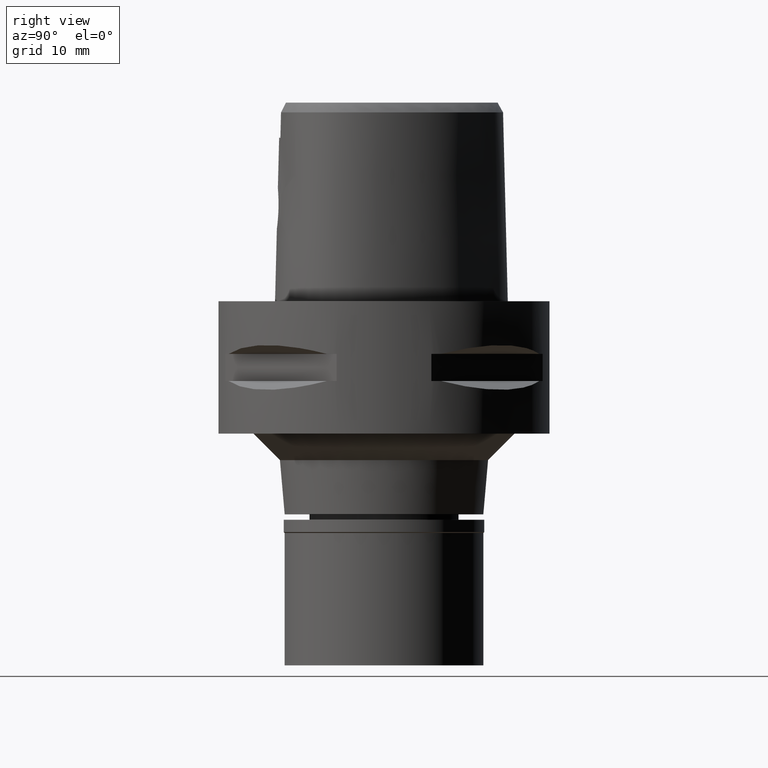
[diagram: clean part render]
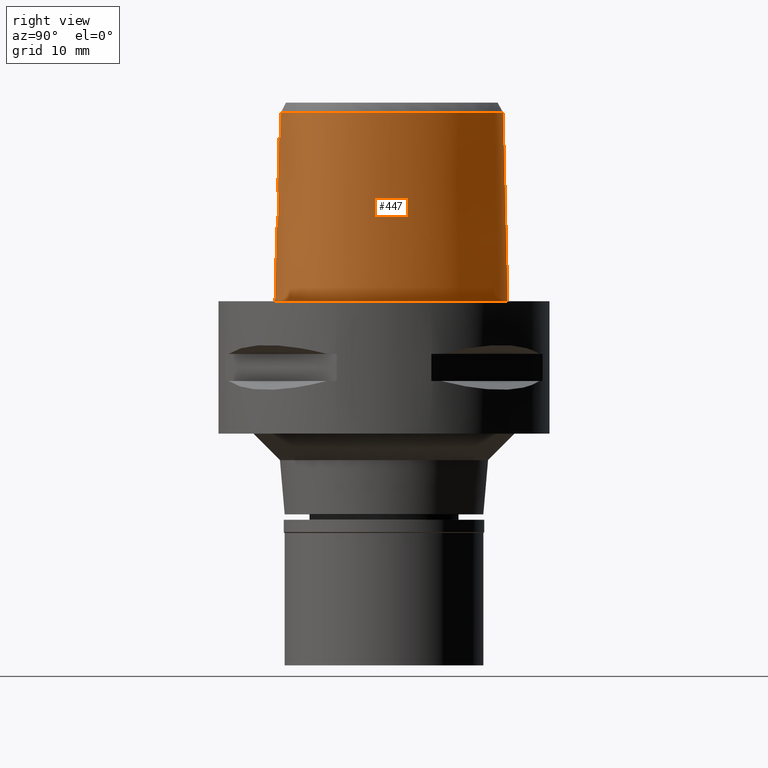
[diagram: same view with one face highlighted and labeled with its STEP entity id]
A machine part, right view. The second image highlights one B-rep face of the part: STEP entity #447.
In plain terms, the highlighted face is a freeform B-spline surface patch.
Its self-contained STEP definition (entity closure, byte-faithful):
#16 = CARTESIAN_POINT ( 'NONE',  ( -1.554703153563999914E-14, -16.18126839358999902, 10.94999999999999929 ) ) ;
#33 = CARTESIAN_POINT ( 'NONE',  ( 5.902447799194773026, -15.16907841529369705, 28.52071728562183139 ) ) ;
#83 = CARTESIAN_POINT ( 'NONE',  ( -1.089046663011000060, -16.44835922793999927, -0.5704150494051000164 ) ) ;
#84 = CARTESIAN_POINT ( 'NONE',  ( 5.051093168877305750, -16.15562500728407969, -2.943032363493004733E-07 ) ) ;
#134 = CARTESIAN_POINT ( 'NONE',  ( 13.06460231238362901, -11.91950040983171100, 28.52071728562183139 ) ) ;
#153 = CARTESIAN_POINT ( 'NONE',  ( 17.49754713036019638, -0.2285937487081985131, -2.943032363493004733E-07 ) ) ;
#165 = CARTESIAN_POINT ( 'NONE',  ( 2.672766172605274271, -16.01457911768984488, 12.52734710901161463 ) ) ;
#172 = CARTESIAN_POINT ( 'NONE',  ( 13.96223197684000183, 8.061115244770999055, 19.20397332997000106 ) ) ;
#186 = CARTESIAN_POINT ( 'NONE',  ( 0.9920215580105590236, -16.15968472523665511, 11.11503786710188635 ) ) ;
#194 = CARTESIAN_POINT ( 'NONE',  ( 15.05961587482999775, -9.784613871188000189, 29.09116751966000081 ) ) ;
#211 = CARTESIAN_POINT ( 'NONE',  ( 2.141242244413262164, -16.07748610924550547, 11.82798736334458312 ) ) ;
#216 = CARTESIAN_POINT ( 'NONE',  ( 17.33218214503999732, -5.422849661406000443, 9.316779140282999805 ) ) ;
#229 = CARTESIAN_POINT ( 'NONE',  ( 2.758793934018819005, -16.00144076156268014, 12.69891623355969479 ) ) ;
#237 = CARTESIAN_POINT ( 'NONE',  ( 11.32630872582000237, -13.06981777885999918, 29.09116751966000081 ) ) ;
#251 = CARTESIAN_POINT ( 'NONE',  ( 3.043879628103287160, -15.94365656354157856, 13.80124267186449494 ) ) ;
#257 = CARTESIAN_POINT ( 'NONE',  ( 17.17866843774999808, -7.169980047119000055, -0.5704150494051000164 ) ) ;
#258 = CARTESIAN_POINT ( 'NONE',  ( 16.47905536661268044, -6.962316254603254428, 28.52071728562183139 ) ) ;
#274 = CARTESIAN_POINT ( 'NONE',  ( 1.173041759185075916, -16.01002306781569118, 16.81539954715181651 ) ) ;
#281 = CARTESIAN_POINT ( 'NONE',  ( 7.668807520599000505, 15.44980289954999897, 19.20397332997000106 ) ) ;
#293 = CARTESIAN_POINT ( 'NONE',  ( 1.941192312555369170, -15.97911427269533746, 16.37496134276572946 ) ) ;
#301 = CARTESIAN_POINT ( 'NONE',  ( 2.043508294870999720, 18.56419797854000109, -0.5704150494051000164 ) ) ;
#318 = CARTESIAN_POINT ( 'NONE',  ( 7.514850377345999810, 15.25369585278999907, 29.09116751966000081 ) ) ;
#333 = CARTESIAN_POINT ( 'NONE',  ( 0.3727032668284881445, -16.02877864023999166, 17.04999999999999716 ) ) ;
#370 = CARTESIAN_POINT ( 'NONE',  ( -0.3531410331723000007, 17.96248689553000233, 29.09116751966000081 ) ) ;
#407 = CARTESIAN_POINT ( 'NONE',  ( -1.554703153563999914E-14, -16.18126839358999902, 10.94999999999999929 ) ) ;
#447 = ADVANCED_FACE ( 'NONE', ( #1876 ), #1582, .T. ) ;
#459 = CARTESIAN_POINT ( 'NONE',  ( 17.71143736299550397, -3.269218749952272685, -2.943032363493004733E-07 ) ) ;
#470 = CARTESIAN_POINT ( 'NONE',  ( 3.168920890822999770, -15.55911073834000113, 28.52071374672999582 ) ) ;
#480 = CARTESIAN_POINT ( 'NONE',  ( 17.56373943664532078, -5.455996094796278229, -2.943032363493004733E-07 ) ) ;
#520 = CARTESIAN_POINT ( 'NONE',  ( 0.7733500841030209738, -16.16827177608691457, 11.04792855518422989 ) ) ;
#526 = CARTESIAN_POINT ( 'NONE',  ( 5.053620745421999239, -16.16974069354000321, -0.5704150494051000164 ) ) ;
#543 = CARTESIAN_POINT ( 'NONE',  ( 2.955369103698598732, -15.96798146753206105, 13.22021584599074018 ) ) ;
#550 = CARTESIAN_POINT ( 'NONE',  ( 13.05575578338000042, -11.90823677972000105, 29.09116751966000081 ) ) ;
#575 = CARTESIAN_POINT ( 'NONE',  ( -0.7138086133277998790, -15.96808600019000046, 19.20397332997000106 ) ) ;
#592 = CARTESIAN_POINT ( 'NONE',  ( 2.043687128913164841, -16.08707877730888214, 11.73578097365642847 ) ) ;
#600 = CARTESIAN_POINT ( 'NONE',  ( 17.02224546358000268, -0.3128849387037999641, 19.20397332997000106 ) ) ;
#612 = ORIENTED_EDGE ( 'NONE', *, *, #3185, .T. ) ;
#614 = CARTESIAN_POINT ( 'NONE',  ( 1.260513252572480036, -16.00704836985821800, 16.77747266943881499 ) ) ;
#622 = CARTESIAN_POINT ( 'NONE',  ( 11.57144722099999967, -13.50085871676000160, 9.316779140282999805 ) ) ;
#623 = CARTESIAN_POINT ( 'NONE',  ( 15.84228676733572350, 3.460033425849364797, 28.52071728562183139 ) ) ;
#633 = CARTESIAN_POINT ( 'NONE',  ( 2.206788957358269521, -15.96511284288821741, 16.10546270898255727 ) ) ;
#639 = CARTESIAN_POINT ( 'NONE',  ( 10.90668468972000227, 11.98047043581000004, 29.09116751966000081 ) ) ;
#647 = EDGE_CURVE ( 'NONE', #3557, #3514, #1342, .T. ) ;
#654 = CARTESIAN_POINT ( 'NONE',  ( 2.271855808346507466, -15.96166101136509852, 16.03519156571071136 ) ) ;
#663 = CARTESIAN_POINT ( 'NONE',  ( 0.4640360852541999814, 18.23425851805000164, 19.20397332997000106 ) ) ;
#673 = VERTEX_POINT ( 'NONE', #3860 ) ;
#675 = CARTESIAN_POINT ( 'NONE',  ( 1.223003262555899306, -16.00836285064811193, 16.79409198884454213 ) ) ;
#684 = CARTESIAN_POINT ( 'NONE',  ( 4.628819200648000454, 17.52182782295999885, 9.316779140282999805 ) ) ;
#695 = CARTESIAN_POINT ( 'NONE',  ( 2.954106347308662173, -15.92920635269666896, 14.76550125215740294 ) ) ;
#703 = EDGE_CURVE ( 'NONE', #3557, #3096, #2173, .T. ) ;
#709 = ORIENTED_EDGE ( 'NONE', *, *, #4207, .T. ) ;
#735 = CARTESIAN_POINT ( 'NONE',  ( -0.3630720960266999864, 18.20950109746000223, 19.20397332997000106 ) ) ;
#742 = CARTESIAN_POINT ( 'NONE',  ( 6.782942639621067406E-08, -15.90128720080247859, 22.15000025259059768 ) ) ;
#761 = VERTEX_POINT ( 'NONE', #2474 ) ;
#815 = CARTESIAN_POINT ( 'NONE',  ( 11.68694516949283546, -13.70394531891655099, -2.943032363493004733E-07 ) ) ;
#822 = B_SPLINE_CURVE_WITH_KNOTS ( 'NONE', 3,
 ( #2868, #742, #3224, #3953 ),
 .UNSPECIFIED., .F., .F.,
 ( 4, 4 ),
 ( 0.0000000000000000000, 1.000000000000000000 ),
 .UNSPECIFIED. ) ;
#863 = CARTESIAN_POINT ( 'NONE',  ( 16.20602472602197253, -9.356552738060711860, -2.943032363493004733E-07 ) ) ;
#872 = CARTESIAN_POINT ( 'NONE',  ( 2.520387428565687316, -16.03552194241015272, 12.27092816431299838 ) ) ;
#876 = CARTESIAN_POINT ( 'NONE',  ( 3.168920890822999770, -15.55911073834000113, 28.52071374672999582 ) ) ;
#905 = CARTESIAN_POINT ( 'NONE',  ( 1.286803340676999863, -15.75925537066999738, 29.09116751966000081 ) ) ;
#927 = CARTESIAN_POINT ( 'NONE',  ( -0.7201291671830999386, -16.21519133446999916, 9.316779140282999805 ) ) ;
#941 = CARTESIAN_POINT ( 'NONE',  ( 2.076300978831038258, -16.08395488413348318, 11.76549149551803275 ) ) ;
#952 = CARTESIAN_POINT ( 'NONE',  ( 17.51166499414999933, -0.2260900513256000055, -0.5704150494051000164 ) ) ;
#977 = CARTESIAN_POINT ( 'NONE',  ( 15.82879708905999827, 3.455165038085000084, 29.09116751966000081 ) ) ;
#990 = CARTESIAN_POINT ( 'NONE',  ( 1.288909036631833205, -16.00601915956529098, 16.76449709074255168 ) ) ;
#998 = CARTESIAN_POINT ( 'NONE',  ( 14.39249255986999998, 8.309508953125000374, -0.5704150494051000164 ) ) ;
#999 = CARTESIAN_POINT ( 'NONE',  ( 13.75951381385633887, 7.944084035686378442, 28.52071728562183139 ) ) ;
#1010 = CARTESIAN_POINT ( 'NONE',  ( 2.887823412380889021, -15.93067557483755792, 14.98363575551913129 ) ) ;
#1040 = CARTESIAN_POINT ( 'NONE',  ( 4.416345065107999623, 17.06979529415999863, 29.09116751966000081 ) ) ;
#1053 = CARTESIAN_POINT ( 'NONE',  ( 3.040432336319636164, -15.94524235528684741, 13.75389089053057212 ) ) ;
#1076 = CARTESIAN_POINT ( 'NONE',  ( 1.205517839384515177, -16.00896275738068297, 16.80168899650261594 ) ) ;
#1100 = VECTOR ( 'NONE', #4418, 1000.000000000000114 ) ;
#1167 = CARTESIAN_POINT ( 'NONE',  ( -1.060560742012000013, -15.70738043500000103, 29.09116751966000081 ) ) ;
#1229 = CARTESIAN_POINT ( 'NONE',  ( 1.934801912393777412, -16.09713420007312834, 11.64158729204112852 ) ) ;
#1258 = CARTESIAN_POINT ( 'NONE',  ( 14.61870757128999898, -11.12154139757000060, 9.316779140282999805 ) ) ;
#1273 = CARTESIAN_POINT ( 'NONE',  ( 3.012651229235205896, -15.95439333010101279, 13.51381583996117897 ) ) ;
#1277 = CARTESIAN_POINT ( 'NONE',  ( 3.213444788215948034, -15.61774735051721308, 25.97357128944999971 ) ) ;
#1281 = CARTESIAN_POINT ( 'NONE',  ( 8.951632343951999360, -15.05250172602000092, -0.5704150494051000164 ) ) ;
#1282 = CARTESIAN_POINT ( 'NONE',  ( -2.586864991386999930E-11, 17.98202997909999823, 28.52071728569000086 ) ) ;
#1298 = CARTESIAN_POINT ( 'NONE',  ( 2.812497775937193634, -15.99278414044948526, 12.82001774686781737 ) ) ;
#1305 = CARTESIAN_POINT ( 'NONE',  ( 17.47781003781999942, -3.270737582799999821, 9.316779140282999805 ) ) ;
#1306 = CARTESIAN_POINT ( 'NONE',  ( 1.893775678556598674, 17.84807068955174003, 28.52071728562183139 ) ) ;
#1323 = CARTESIAN_POINT ( 'NONE',  ( 2.169052010913982809, -15.77399788591157481, 24.70000016056456005 ) ) ;
#1327 = CARTESIAN_POINT ( 'NONE',  ( 16.77753569829999947, -0.3562823823929000544, 29.09116751966000081 ) ) ;
#1342 = B_SPLINE_CURVE_WITH_KNOTS ( 'NONE', 3,
 ( #4116, #1277, #4573, #876 ),
 .UNSPECIFIED., .F., .F.,
 ( 4, 4 ),
 ( 0.0000000000000000000, 1.000000000000000000 ),
 .UNSPECIFIED. ) ;
#1344 = CARTESIAN_POINT ( 'NONE',  ( 2.329034364187666295, -15.95861321911639230, 15.97013528029526874 ) ) ;
#1347 = EDGE_CURVE ( 'NONE', #1486, #761, #4450, .T. ) ;
#1352 = CARTESIAN_POINT ( 'NONE',  ( 1.309813745119000172, -16.25411902687999799, 9.316779140282999805 ) ) ;
#1353 = CARTESIAN_POINT ( 'NONE',  ( 16.79165444019960773, -0.3537785292841060247, 28.52071728562183139 ) ) ;
#1366 = CARTESIAN_POINT ( 'NONE',  ( 1.187380234826515224, -16.00956231465951163, 16.80939108475712729 ) ) ;
#1384 = CARTESIAN_POINT ( 'NONE',  ( 2.030224829794000080E-07, -15.83752876601000281, 24.70000006102999990 ) ) ;
#1391 = CARTESIAN_POINT ( 'NONE',  ( -0.5593289199273999701, 18.44521825025000084, 9.316779140282999805 ) ) ;
#1416 = CARTESIAN_POINT ( 'NONE',  ( 11.47659489181000048, 12.46143685420000047, -0.5704150494051000164 ) ) ;
#1457 = EDGE_CURVE ( 'NONE', #1486, #673, #4296, .T. ) ;
#1486 = VERTEX_POINT ( 'NONE', #407 ) ;
#1516 = CARTESIAN_POINT ( 'NONE',  ( -1.070056049011999910, -15.95437336598000044, 19.20397332997000106 ) ) ;
#1517 = CARTESIAN_POINT ( 'NONE',  ( 17.16495052488077633, -7.165908205226160455, -2.943032363493004733E-07 ) ) ;
#1538 = CARTESIAN_POINT ( 'NONE',  ( 16.66912842813222184, -8.445800784245383497, -2.943032363493004733E-07 ) ) ;
#1576 = CARTESIAN_POINT ( 'NONE',  ( 1.118631972837212718, -16.15369409685633073, 11.16249137684934034 ) ) ;
#1582 = B_SPLINE_SURFACE_WITH_KNOTS ( 'NONE', 3, 3, ( 
 ( #83, #4411, #1516, #1167 ),
 ( #2791, #927, #575, #2354 ),
 ( #2695, #1352, #2055, #905 ),
 ( #526, #3052, #2407, #1699 ),
 ( #1281, #1673, #1986, #4145 ),
 ( #3814, #622, #3105, #237 ),
 ( #2012, #3149, #2718, #550 ),
 ( #3459, #1258, #2036, #4600 ),
 ( #2740, #3481, #2333, #194 ),
 ( #4168, #3790, #4235, #3766 ),
 ( #3431, #3863, #3125, #3500 ),
 ( #257, #1653, #4576, #2384 ),
 ( #3081, #216, #4187, #4554 ),
 ( #1630, #1305, #3843, #4531 ),
 ( #952, #1604, #600, #1327 ),
 ( #2771, #4213, #1962, #977 ),
 ( #998, #3411, #172, #4506 ),
 ( #1416, #2095, #4663, #639 ),
 ( #3545, #3971, #281, #318 ),
 ( #1759, #684, #1721, #1040 ),
 ( #301, #3169, #3946, #3261 ),
 ( #3616, #1741, #663, #2476 ),
 ( #3187, #4637, #735, #370 ),
 ( #4357, #1391, #2078, #3566 ) ),
 .UNSPECIFIED., .F., .F., .F.,
 ( 4, 1, 1, 1, 1, 1, 1, 1, 1, 1, 1, 1, 1, 1, 1, 1, 1, 1, 1, 1, 1, 4 ),
 ( 4, 4 ),
 ( -0.01796851319138999953, 0.0000000000000000000, 0.08333333333324000058, 0.1666666666665000129, 0.2083333333331000015, 0.2499999999996999900, 0.2916666666664000096, 0.3124999999996999622, 0.3333333333328999948, 0.3541666666663000340, 0.3749999999995999866, 0.4166666666663000340, 0.4583333333328000192, 0.4999999999994999555, 0.5833333333326999881, 0.6666666666660000518, 0.7499999999991999733, 0.8333333333324000058, 0.9166666666657000695, 0.9583333333322999747, 1.000000000000000000, 1.011711214084999977 ),
 ( -1.075811741427000094E-08, 1.000000548664000011 ),
 .UNSPECIFIED. ) ;
#1597 = CARTESIAN_POINT ( 'NONE',  ( 2.797697223023510205, -15.99518590079310876, 12.78523452848045672 ) ) ;
#1604 = CARTESIAN_POINT ( 'NONE',  ( 17.26695522886999967, -0.2694874950146999848, 9.316779140282999805 ) ) ;
#1630 = CARTESIAN_POINT ( 'NONE',  ( 17.72574106895000057, -3.269125760236999856, -0.5704150494051000164 ) ) ;
#1653 = CARTESIAN_POINT ( 'NONE',  ( 16.94089115866999862, -7.099401417894999788, 9.316779140282999805 ) ) ;
#1673 = CARTESIAN_POINT ( 'NONE',  ( 8.866858689328001475, -14.81887805833999927, 9.316779140282999805 ) ) ;
#1689 = CARTESIAN_POINT ( 'NONE',  ( 1.460006541016399151, -15.99949710020347915, 16.67975710980072179 ) ) ;
#1699 = CARTESIAN_POINT ( 'NONE',  ( 4.922186697286000445, -15.43572462951000190, 29.09116751966000081 ) ) ;
#1700 = CARTESIAN_POINT ( 'NONE',  ( 15.07117004566746132, -9.793013887526701211, 28.52071728562183139 ) ) ;
#1715 = CARTESIAN_POINT ( 'NONE',  ( 3.048557558768734577, -15.94075653918167568, 13.89509777531535839 ) ) ;
#1721 = CARTESIAN_POINT ( 'NONE',  ( 4.522582132878000039, 17.29581155856000052, 19.20397332997000106 ) ) ;
#1734 = CARTESIAN_POINT ( 'NONE',  ( 1.721339453482784609, -15.98873514545550201, 16.52593736170086203 ) ) ;
#1741 = CARTESIAN_POINT ( 'NONE',  ( 0.4768940185430000089, 18.48195204150000137, 9.316779140282999805 ) ) ;
#1751 = CARTESIAN_POINT ( 'NONE',  ( 2.857201462577073414, -15.93172473590080074, 15.06773103493956079 ) ) ;
#1759 = CARTESIAN_POINT ( 'NONE',  ( 4.735056268417999981, 17.74784408736000074, -0.5704150494051000164 ) ) ;
#1781 = CARTESIAN_POINT ( 'NONE',  ( 1.173853552518250298, -16.00999767194904777, 16.81506288333670440 ) ) ;
#1876 = FACE_OUTER_BOUND ( 'NONE', #3205, .T. ) ;
#1920 = CARTESIAN_POINT ( 'NONE',  ( 11.46563508588619840, 12.45218750477254943, -2.943032363493004733E-07 ) ) ;
#1922 = CARTESIAN_POINT ( 'NONE',  ( 8.702202469521898465, -14.36510984286469927, 28.52071728562183139 ) ) ;
#1933 = CARTESIAN_POINT ( 'NONE',  ( 0.1894495327090997550, -16.18126839359000613, 10.95000000000000107 ) ) ;
#1954 = CARTESIAN_POINT ( 'NONE',  ( 1.978401478391795143, -16.09320737883066244, 11.67797349049082989 ) ) ;
#1962 = CARTESIAN_POINT ( 'NONE',  ( 16.06260375739000068, 3.539545221218999949, 19.20397332997000106 ) ) ;
#1978 = CARTESIAN_POINT ( 'NONE',  ( 2.772223513432770403, -15.99929841509046824, 12.72795982498049128 ) ) ;
#1986 = CARTESIAN_POINT ( 'NONE',  ( 8.782085034703998261, -14.58525439064999851, 19.20397332997000106 ) ) ;
#1999 = CARTESIAN_POINT ( 'NONE',  ( 0.9192227877463184926, -16.16270179715702326, 11.09137429213424397 ) ) ;
#2012 = CARTESIAN_POINT ( 'NONE',  ( 13.51574691815999962, -12.49390941975999958, -0.5704150494051000164 ) ) ;
#2027 = CARTESIAN_POINT ( 'NONE',  ( 2.114223384930507432, -16.08020605537010184, 11.80160142187878947 ) ) ;
#2032 = CARTESIAN_POINT ( 'NONE',  ( 1.084489111483748713, -15.83754148653714822, 24.70000016056456005 ) ) ;
#2036 = CARTESIAN_POINT ( 'NONE',  ( 14.43869605903999975, -10.95090954844000031, 19.20397332997000106 ) ) ;
#2049 = CARTESIAN_POINT ( 'NONE',  ( 3.050752832701856931, -15.93335321857337483, 14.17943226989613947 ) ) ;
#2055 = CARTESIAN_POINT ( 'NONE',  ( 1.298308542897999907, -16.00668719876999901, 19.20397332997000106 ) ) ;
#2056 = CARTESIAN_POINT ( 'NONE',  ( 16.99625257117340382, -3.273868232426908165, 28.52071728562183139 ) ) ;
#2068 = CARTESIAN_POINT ( 'NONE',  ( 2.527203409208579554, -15.94795454292516723, 15.71045947794671349 ) ) ;
#2078 = CARTESIAN_POINT ( 'NONE',  ( -0.5443412010077000041, 18.19851675342999897, 19.20397332997000106 ) ) ;
#2089 = CARTESIAN_POINT ( 'NONE',  ( 3.033396993946955611, -15.93045878152547168, 14.37488419749897695 ) ) ;
#2091 = CARTESIAN_POINT ( 'NONE',  ( 1.148496333179999941E-10, 18.69499999997000117, 2.166785269726999959E-13 ) ) ;
#2095 = CARTESIAN_POINT ( 'NONE',  ( 11.28662482444999959, 12.30111471474000062, 9.316779140282999805 ) ) ;
#2129 = CARTESIAN_POINT ( 'NONE',  ( 1.175361140431635532, -16.00994936128884305, 16.81443205078002379 ) ) ;
#2173 = B_SPLINE_CURVE_WITH_KNOTS ( 'NONE', 3,
 ( #4166, #1323, #2032, #3477 ),
 .UNSPECIFIED., .F., .F.,
 ( 4, 4 ),
 ( 0.0000000000000000000, 1.000000000000000000 ),
 .UNSPECIFIED. ) ;
#2227 = ORIENTED_EDGE ( 'NONE', *, *, #1457, .T. ) ;
#2243 = CARTESIAN_POINT ( 'NONE',  ( 13.50690093936289671, -12.48264649018550010, -2.943032363493004733E-07 ) ) ;
#2244 = CARTESIAN_POINT ( 'NONE',  ( 3.738627708317511011, -15.49270856215212255, 28.52071728562183139 ) ) ;
#2288 = CARTESIAN_POINT ( 'NONE',  ( 0.6801907864020648731, 18.69500000735850520, -2.943032363493004733E-07 ) ) ;
#2325 = CARTESIAN_POINT ( 'NONE',  ( 2.809840066129670522, -15.99321454230065065, 12.81369807507703484 ) ) ;
#2333 = CARTESIAN_POINT ( 'NONE',  ( 15.25987581681000016, -9.930205173954998799, 19.20397332997000106 ) ) ;
#2348 = CARTESIAN_POINT ( 'NONE',  ( 0.3834732140112382948, -16.17879284739893819, 10.96770252002583845 ) ) ;
#2354 = CARTESIAN_POINT ( 'NONE',  ( -0.7074880594724000105, -15.72098066591000354, 29.09116751966000081 ) ) ;
#2384 = CARTESIAN_POINT ( 'NONE',  ( 16.46533660050999970, -6.958244159447999344, 29.09116751966000081 ) ) ;
#2407 = CARTESIAN_POINT ( 'NONE',  ( 4.965998046664999777, -15.68039665085000145, 19.20397332997000106 ) ) ;
#2421 = CARTESIAN_POINT ( 'NONE',  ( 2.765044067085276502, -15.93540055813872236, 15.29680159057339317 ) ) ;
#2429 = CARTESIAN_POINT ( 'NONE',  ( 4.422474504766030101, 17.08283549833216597, 28.52071728562183139 ) ) ;
#2469 = CARTESIAN_POINT ( 'NONE',  ( 2.242477773927259221, -15.96322321980954406, 16.06768576497242762 ) ) ;
#2474 = CARTESIAN_POINT ( 'NONE',  ( 0.0000000000000000000, -16.02877864023999877, 17.05000000000000071 ) ) ;
#2476 = CARTESIAN_POINT ( 'NONE',  ( 0.4511781519654000094, 17.98656499459999836, 29.09116751966000081 ) ) ;
#2490 = CARTESIAN_POINT ( 'NONE',  ( 2.977637011698920144, -15.92914142279828305, 14.66787850516837821 ) ) ;
#2580 = CARTESIAN_POINT ( 'NONE',  ( 11.33338046474129257, -13.08225241902118263, 28.52071728562183139 ) ) ;
#2650 = CARTESIAN_POINT ( 'NONE',  ( 4.728927209978149193, 17.73480469421840056, -2.943032363493004733E-07 ) ) ;
#2660 = CARTESIAN_POINT ( 'NONE',  ( 2.130440050198784352, -16.07857706731606839, 11.81739091096006611 ) ) ;
#2685 = CARTESIAN_POINT ( 'NONE',  ( -1.554703153563999914E-14, -16.18126839358999902, 10.94999999999999929 ) ) ;
#2695 = CARTESIAN_POINT ( 'NONE',  ( 1.321318947341000083, -16.50155085497999963, -0.5704150494051000164 ) ) ;
#2709 = CARTESIAN_POINT ( 'NONE',  ( 2.896435686145258703, -15.97921269886448314, 13.02057677355192844 ) ) ;
#2718 = CARTESIAN_POINT ( 'NONE',  ( 13.20908616164000016, -12.10346099307000145, 19.20397332997000106 ) ) ;
#2732 = CARTESIAN_POINT ( 'NONE',  ( 3.026576382595904224, -15.95040706921858131, 13.61073229992667954 ) ) ;
#2740 = CARTESIAN_POINT ( 'NONE',  ( 15.66039570074999965, -10.22138777948999966, -0.5704150494051000164 ) ) ;
#2771 = CARTESIAN_POINT ( 'NONE',  ( 16.53021709405999928, 3.708305587487999766, -0.5704150494051000164 ) ) ;
#2783 = CARTESIAN_POINT ( 'NONE',  ( 2.911187380422592508, -15.93005982175540325, 14.91106923756332314 ) ) ;
#2791 = CARTESIAN_POINT ( 'NONE',  ( -0.7264497210385000292, -16.46229666874999964, -0.5704150494051000164 ) ) ;
#2792 = CARTESIAN_POINT ( 'NONE',  ( 15.58740368722445879, -8.999391713747128208, 28.52071728562183139 ) ) ;
#2804 = CARTESIAN_POINT ( 'NONE',  ( 0.7752114375239889110, -16.02255075438185727, 16.98077949257240959 ) ) ;
#2822 = CARTESIAN_POINT ( 'NONE',  ( 1.383776128103214820, -16.00247285938742436, 16.71893109604355843 ) ) ;
#2868 = CARTESIAN_POINT ( 'NONE',  ( 2.030224829794000080E-07, -15.83752876601000281, 24.70000006102999990 ) ) ;
#2881 = ORIENTED_EDGE ( 'NONE', *, *, #3582, .F. ) ;
#2919 = CARTESIAN_POINT ( 'NONE',  ( 14.26907046692357994, -10.79012245165427863, 28.52071728562183139 ) ) ;
#2941 = CARTESIAN_POINT ( 'NONE',  ( 14.78833380935479447, -11.28232910664636357, -2.943032363493004733E-07 ) ) ;
#2986 = CARTESIAN_POINT ( 'NONE',  ( 8.946741558708611208, -15.03902344445405603, -2.943032363493004733E-07 ) ) ;
#3022 = CARTESIAN_POINT ( 'NONE',  ( 1.804420441694464472, -16.10843792448442713, 11.53852835997381909 ) ) ;
#3043 = CARTESIAN_POINT ( 'NONE',  ( 2.805970550755374493, -15.99384217157875554, 12.80455568726344140 ) ) ;
#3046 = LINE ( 'NONE', #4455, #4004 ) ;
#3052 = CARTESIAN_POINT ( 'NONE',  ( 5.009809396042999907, -15.92506867220000188, 9.316779140282999805 ) ) ;
#3056 = CARTESIAN_POINT ( 'NONE',  ( 1.148496333179999941E-10, 18.69499999997000117, 2.166785269726999959E-13 ) ) ;
#3069 = CARTESIAN_POINT ( 'NONE',  ( 1.465118339626372057, -16.13413162263063327, 11.31749907740337058 ) ) ;
#3072 = CARTESIAN_POINT ( 'NONE',  ( 3.235096591086000117, -15.64751801257999908, 24.70000006080999810 ) ) ;
#3081 = CARTESIAN_POINT ( 'NONE',  ( 17.57791640591999993, -5.458025467157999522, -0.5704150494051000164 ) ) ;
#3095 = CARTESIAN_POINT ( 'NONE',  ( 2.373302014291585493, -16.05379782336342842, 12.05901053869867390 ) ) ;
#3096 = VERTEX_POINT ( 'NONE', #1384 ) ;
#3105 = CARTESIAN_POINT ( 'NONE',  ( 11.44887797340999924, -13.28533824780999950, 19.20397332997000106 ) ) ;
#3119 = CARTESIAN_POINT ( 'NONE',  ( 2.789658454073428828, -15.99648933267649653, 12.76691116968810746 ) ) ;
#3125 = CARTESIAN_POINT ( 'NONE',  ( 16.22974785606999859, -8.250337533060999817, 19.20397332997000106 ) ) ;
#3139 = CARTESIAN_POINT ( 'NONE',  ( 2.829165579439845590, -15.93279925276212872, 15.13945751283941199 ) ) ;
#3149 = CARTESIAN_POINT ( 'NONE',  ( 13.36241653989999989, -12.29868520640999918, 9.316779140282999805 ) ) ;
#3150 = CARTESIAN_POINT ( 'NONE',  ( 16.85489147434076429, -5.354527548487618915, 28.52071728562183139 ) ) ;
#3161 = CARTESIAN_POINT ( 'NONE',  ( 2.833942197403129359, -15.93260999374507669, 15.12752513108635455 ) ) ;
#3162 = ORIENTED_EDGE ( 'NONE', *, *, #1347, .F. ) ;
#3169 = CARTESIAN_POINT ( 'NONE',  ( 1.992618716666999967, 18.32080801731999742, 9.316779140282999805 ) ) ;
#3185 = EDGE_CURVE ( 'NONE', #3395, #3514, #3832, .T. ) ;
#3187 = CARTESIAN_POINT ( 'NONE',  ( -0.3829342217355000133, 18.70352950132999936, -0.5704150494051000164 ) ) ;
#3199 = CARTESIAN_POINT ( 'NONE',  ( 2.467122713007102064, -15.95120093642819015, 15.79664972603441342 ) ) ;
#3205 = EDGE_LOOP ( 'NONE', ( #2881, #612, #3369, #4341, #709, #3162, #2227, #3767 ) ) ;
#3224 = CARTESIAN_POINT ( 'NONE',  ( 6.798464048501150303E-08, -15.96503292052253720, 19.60000012629533472 ) ) ;
#3261 = CARTESIAN_POINT ( 'NONE',  ( 1.890839560259000018, 17.83402809489000163, 29.09116751966000081 ) ) ;
#3293 = CARTESIAN_POINT ( 'NONE',  ( 1.683697722960655119, -16.45500000735747648, -2.943032363493004203E-07 ) ) ;
#3342 = CARTESIAN_POINT ( 'NONE',  ( -2.586864991386999930E-11, 17.98202997909999823, 28.52071728569000086 ) ) ;
#3369 = ORIENTED_EDGE ( 'NONE', *, *, #647, .F. ) ;
#3395 = VERTEX_POINT ( 'NONE', #3342 ) ;
#3408 = B_SPLINE_CURVE_WITH_KNOTS ( 'NONE', 3,
 ( #3672, #3293, #84, #2986, #815, #2243, #2941, #4391, #863, #1538, #1517, #480, #459, #153, #4439, #3718, #1920, #4463, #2650, #4102, #2288, #3056 ),
 .UNSPECIFIED., .F., .F.,
 ( 4, 1, 1, 1, 1, 1, 1, 1, 1, 1, 1, 1, 1, 1, 1, 1, 1, 1, 1, 4 ),
 ( 0.0000000000000000000, 0.08333333333324000058, 0.1666666666665000129, 0.2083333333331000015, 0.2499999999996999900, 0.2916666666664000096, 0.3124999999996999622, 0.3333333333328999948, 0.3541666666663000340, 0.3749999999995999866, 0.4166666666663000340, 0.4583333333328000192, 0.4999999999994999555, 0.5833333333326999881, 0.6666666666660000518, 0.7499999999991999733, 0.8333333333324000058, 0.9166666666657000695, 0.9583333333322999747, 1.000000000000000000 ),
 .UNSPECIFIED. ) ;
#3411 = CARTESIAN_POINT ( 'NONE',  ( 14.17736226834999869, 8.185312098948001491, 9.316779140282999805 ) ) ;
#3425 = CARTESIAN_POINT ( 'NONE',  ( 1.148653670521410319, -16.15217830831941370, 11.17455549462350817 ) ) ;
#3431 = CARTESIAN_POINT ( 'NONE',  ( 16.68217932928000025, -8.451606620305000206, -0.5704150494051000164 ) ) ;
#3448 = CARTESIAN_POINT ( 'NONE',  ( 1.136649371335996195, -16.15278752476487512, 11.16970494216486287 ) ) ;
#3459 = CARTESIAN_POINT ( 'NONE',  ( 14.79871908355000087, -11.29217324671000000, -0.5704150494051000164 ) ) ;
#3472 = CARTESIAN_POINT ( 'NONE',  ( 2.712196927298453630, -16.00867667556801166, 12.60302484694718395 ) ) ;
#3477 = CARTESIAN_POINT ( 'NONE',  ( 2.030224829794000080E-07, -15.83752876601000281, 24.70000006102999990 ) ) ;
#3481 = CARTESIAN_POINT ( 'NONE',  ( 15.46013575877999813, -10.07579647672000078, 9.316779140282999805 ) ) ;
#3500 = CARTESIAN_POINT ( 'NONE',  ( 16.00353211945999732, -8.149702989437999534, 29.09116751966000081 ) ) ;
#3501 = CARTESIAN_POINT ( 'NONE',  ( 7.523733068098863441, 15.26501041874011833, 28.52071728562183139 ) ) ;
#3513 = CARTESIAN_POINT ( 'NONE',  ( 1.178881115483600084, -16.00983700982164493, 16.81296121962391155 ) ) ;
#3514 = VERTEX_POINT ( 'NONE', #470 ) ;
#3537 = CARTESIAN_POINT ( 'NONE',  ( 2.180709027046896509, -15.96649011063877310, 16.13237480373310717 ) ) ;
#3545 = CARTESIAN_POINT ( 'NONE',  ( 7.976721807105000117, 15.84201699308000144, -0.5704150494051000164 ) ) ;
#3557 = VERTEX_POINT ( 'NONE', #3072 ) ;
#3566 = CARTESIAN_POINT ( 'NONE',  ( -0.5293534820880999581, 17.95181525659999622, 29.09116751966000081 ) ) ;
#3577 = CARTESIAN_POINT ( 'NONE',  ( 2.841046727378025327, -15.93233201204925820, 15.10961347522871101 ) ) ;
#3582 = EDGE_CURVE ( 'NONE', #3395, #3749, #3046, .T. ) ;
#3616 = CARTESIAN_POINT ( 'NONE',  ( 0.4897519518317999809, 18.72964556495000110, -0.5704150494051000164 ) ) ;
#3672 = CARTESIAN_POINT ( 'NONE',  ( -1.226586580377999741E-13, -16.45500000000000185, 2.178257574314999904E-13 ) ) ;
#3675 = CARTESIAN_POINT ( 'NONE',  ( 3.168920890822999770, -15.55911073834000113, 28.52071374672999582 ) ) ;
#3718 = CARTESIAN_POINT ( 'NONE',  ( 14.38008120330129636, 8.302343753696261430, -2.943032363493004733E-07 ) ) ;
#3749 = VERTEX_POINT ( 'NONE', #2091 ) ;
#3766 = CARTESIAN_POINT ( 'NONE',  ( 15.57503048815000035, -8.992248043910000987, 29.09116751966000081 ) ) ;
#3767 = ORIENTED_EDGE ( 'NONE', *, *, #4352, .T. ) ;
#3790 = CARTESIAN_POINT ( 'NONE',  ( 16.00394159975000008, -9.239879990369999518, 9.316779140282999805 ) ) ;
#3807 = CARTESIAN_POINT ( 'NONE',  ( 0.6757381426009810843, -16.17136620882574150, 11.02414333495972443 ) ) ;
#3814 = CARTESIAN_POINT ( 'NONE',  ( 11.69401646859000010, -13.71637918571000014, -0.5704150494051000164 ) ) ;
#3832 = B_SPLINE_CURVE_WITH_KNOTS ( 'NONE', 3,
 ( #1282, #4555, #1306, #2429, #3501, #4237, #999, #623, #1353, #2056, #3150, #258, #4601, #2792, #1700, #2919, #134, #2580, #1922, #33, #2244, #3675 ),
 .UNSPECIFIED., .F., .F.,
 ( 4, 1, 1, 1, 1, 1, 1, 1, 1, 1, 1, 1, 1, 1, 1, 1, 1, 1, 1, 4 ),
 ( 0.0000000000000000000, 0.04404152929333191718, 0.08808305858550100065, 0.1761661171699451522, 0.2642491757542835829, 0.3523322343386218747, 0.4404152929230660263, 0.5284983515074044291, 0.5725398807996793238, 0.6165814100917427210, 0.6606229393840177266, 0.6826437040301022163, 0.7046644686762925103, 0.7266852333222714178, 0.7487059979683560185, 0.7927475272606309131, 0.8367890565528001146, 0.8808305858449693160, 0.9689136444293711126, 1.000000000000000000 ),
 .UNSPECIFIED. ) ;
#3843 = CARTESIAN_POINT ( 'NONE',  ( 17.22987900668000094, -3.272349405363000230, 19.20397332997000106 ) ) ;
#3854 = CARTESIAN_POINT ( 'NONE',  ( 2.173722415506266437, -15.96685861509520699, 16.13949918917611726 ) ) ;
#3860 = CARTESIAN_POINT ( 'NONE',  ( -1.226586580377999741E-13, -16.45500000000000185, 2.178257574314999904E-13 ) ) ;
#3863 = CARTESIAN_POINT ( 'NONE',  ( 16.45596359266999897, -8.350972076683000012, 9.316779140282999805 ) ) ;
#3874 = CARTESIAN_POINT ( 'NONE',  ( 2.686582372774035665, -15.93944135665897832, 15.45756301515669051 ) ) ;
#3915 = CARTESIAN_POINT ( 'NONE',  ( 2.188586941522366658, -15.96607441606759359, 16.12430833070350644 ) ) ;
#3935 = CARTESIAN_POINT ( 'NONE',  ( 2.175439915796314683, -15.96676803852621696, 16.13775006420295099 ) ) ;
#3946 = CARTESIAN_POINT ( 'NONE',  ( 1.941729138462999993, 18.07741805610999819, 19.20397332997000106 ) ) ;
#3953 = CARTESIAN_POINT ( 'NONE',  ( 0.0000000000000000000, -16.02877864023999877, 17.05000000000000071 ) ) ;
#3971 = CARTESIAN_POINT ( 'NONE',  ( 7.822764663852000311, 15.64590994632000154, 9.316779140282999805 ) ) ;
#4004 = VECTOR ( 'NONE', #4497, 1000.000000000000114 ) ;
#4102 = CARTESIAN_POINT ( 'NONE',  ( 2.040572359181707540, 18.55015625725286199, -2.943032363493004733E-07 ) ) ;
#4112 = CARTESIAN_POINT ( 'NONE',  ( 2.145115848693511573, -16.07709363583436968, 11.83180415713707667 ) ) ;
#4116 = CARTESIAN_POINT ( 'NONE',  ( 3.235096591086000117, -15.64751801257999908, 24.70000006080999810 ) ) ;
#4138 = CARTESIAN_POINT ( 'NONE',  ( 1.156140452976635702, -16.15179445815630288, 11.17761395278644621 ) ) ;
#4145 = CARTESIAN_POINT ( 'NONE',  ( 8.697311380078998511, -14.35163072296999864, 29.09116751966000081 ) ) ;
#4166 = CARTESIAN_POINT ( 'NONE',  ( 3.235096591086000117, -15.64751801257999908, 24.70000006080999810 ) ) ;
#4168 = CARTESIAN_POINT ( 'NONE',  ( 16.21839715555000083, -9.363695963599999672, -0.5704150494051000164 ) ) ;
#4182 = CARTESIAN_POINT ( 'NONE',  ( 1.718077847657970336, -16.11533808833710424, 11.47796129161400991 ) ) ;
#4187 = CARTESIAN_POINT ( 'NONE',  ( 17.08644788415999827, -5.387673855653999588, 19.20397332997000106 ) ) ;
#4203 = CARTESIAN_POINT ( 'NONE',  ( 1.076517935930249248, -16.15575866369926317, 11.14609495643685122 ) ) ;
#4207 = EDGE_CURVE ( 'NONE', #3096, #761, #822, .T. ) ;
#4213 = CARTESIAN_POINT ( 'NONE',  ( 16.29641042572000131, 3.623925404353999902, 9.316779140282999805 ) ) ;
#4224 = CARTESIAN_POINT ( 'NONE',  ( 0.0000000000000000000, -16.02877864023999877, 17.05000000000000071 ) ) ;
#4235 = CARTESIAN_POINT ( 'NONE',  ( 15.78948604395000110, -9.116064017139999365, 19.20397332997000106 ) ) ;
#4237 = CARTESIAN_POINT ( 'NONE',  ( 10.91764517732718076, 11.98972036053358003, 28.52071728562183139 ) ) ;
#4248 = CARTESIAN_POINT ( 'NONE',  ( 3.049780434850657418, -15.93949151225380589, 13.93967920499906832 ) ) ;
#4296 = LINE ( 'NONE', #16, #1100 ) ;
#4341 = ORIENTED_EDGE ( 'NONE', *, *, #703, .T. ) ;
#4352 = EDGE_CURVE ( 'NONE', #673, #3749, #3408, .T. ) ;
#4357 = CARTESIAN_POINT ( 'NONE',  ( -0.5743166388470000161, 18.69191974708000004, -0.5704150494051000164 ) ) ;
#4391 = CARTESIAN_POINT ( 'NONE',  ( 15.64884224852038486, -10.21298828558696137, -2.943032363493004733E-07 ) ) ;
#4411 = CARTESIAN_POINT ( 'NONE',  ( -1.079551356011000163, -16.20136629695999986, 9.316779140282999805 ) ) ;
#4418 = DIRECTION ( 'NONE',  ( 0.0000000000000000000, -0.02499051295401919642, -0.9996876883618678322 ) ) ;
#4439 = CARTESIAN_POINT ( 'NONE',  ( 16.51672825476914142, 3.703437502511168322, -2.943032363493004733E-07 ) ) ;
#4450 = B_SPLINE_CURVE_WITH_KNOTS ( 'NONE', 3,
 ( #2685, #1933, #2348, #3807, #520, #1999, #186, #4203, #1576, #3448, #3425, #4138, #4524, #3069, #4182, #3022, #1229, #1954, #592, #941, #2027, #2660, #211, #4112, #3095, #872, #165, #3472, #229, #1978, #3119, #1597, #3043, #2325, #4494, #1298, #4547, #2709, #543, #1273, #2732, #1053, #251, #1715, #4248, #2049, #2089, #2490, #695, #2783, #1010, #1751, #3577, #3161, #3139, #4676, #2421, #3874, #2068, #3199, #4611, #1344, #654, #2469, #633, #3915, #3537, #3935, #3854, #293, #1734, #1689, #2822, #990, #614, #675, #1076, #1366, #3513, #2129, #274, #1781, #2804, #333, #4224 ),
 .UNSPECIFIED., .F., .F.,
 ( 4, 2, 2, 1, 1, 1, 2, 2, 2, 2, 2, 1, 1, 2, 2, 2, 2, 2, 1, 1, 1, 2, 2, 2, 2, 2, 2, 2, 2, 1, 1, 1, 2, 2, 2, 2, 2, 1, 1, 1, 2, 2, 2, 2, 2, 1, 1, 1, 2, 2, 4 ),
 ( 0.0000000000000000000, 0.06249999999997490896, 0.09374999999996234956, 0.1093749999999560490, 0.1171874999999530237, 0.1210937499999515110, 0.1230468749999508449, 0.1249999999999501787, 0.1874999999999223121, 0.2187499999999085454, 0.2343749999999015787, 0.2421874999998979705, 0.2460937499998960831, 0.2480468749998952505, 0.2499999999998944455, 0.3124999999998706035, 0.3437499999998588907, 0.3593749999998533950, 0.3671874999998503419, 0.3710937499998491762, 0.3730468749998491762, 0.3740234374998486766, 0.3749999999998481770, 0.4374999999998398503, 0.4687499999998359645, 0.4843749999998342992, 0.4999999999998325784, 0.5624999999998275824, 0.5937499999998250289, 0.6093749999998236966, 0.6171874999998231415, 0.6210937499998228084, 0.6230468749998226974, 0.6249999999998225864, 0.6874999999998295808, 0.7187499999998328004, 0.7343749999998343547, 0.7421874999998351319, 0.7460937499998355760, 0.7480468749998354649, 0.7490234374998359090, 0.7499999999998362421, 0.8124999999998652189, 0.8437499999998796518, 0.8593749999998872013, 0.8671874999998913092, 0.8710937499998934186, 0.8730468749998949729, 0.8740234374998958611, 0.8749999999998966382, 1.000000000000000000 ),
 .UNSPECIFIED. ) ;
#4455 = CARTESIAN_POINT ( 'NONE',  ( -2.586864991386999930E-11, 17.98202997909999823, 28.52071728569000086 ) ) ;
#4463 = CARTESIAN_POINT ( 'NONE',  ( 7.967839668807723541, 15.83070313083502789, -2.943032363493004733E-07 ) ) ;
#4494 = CARTESIAN_POINT ( 'NONE',  ( 2.811442136234918898, -15.99295503732340862, 12.81750476873629019 ) ) ;
#4497 = DIRECTION ( 'NONE',  ( 4.932356148883903129E-12, 0.02499051285750950729, -0.9996876883642803469 ) ) ;
#4506 = CARTESIAN_POINT ( 'NONE',  ( 13.74710168532000054, 7.936918390593000083, 29.09116751966000081 ) ) ;
#4524 = CARTESIAN_POINT ( 'NONE',  ( 1.304852111983261231, -16.14411803580695093, 11.23880869967954865 ) ) ;
#4531 = CARTESIAN_POINT ( 'NONE',  ( 16.98194797555000335, -3.273961227926000195, 29.09116751966000081 ) ) ;
#4547 = CARTESIAN_POINT ( 'NONE',  ( 2.812239530463133352, -15.99282583612282949, 12.81939842431389032 ) ) ;
#4554 = CARTESIAN_POINT ( 'NONE',  ( 16.84071362327999921, -5.352498049901999622, 29.09116751966000081 ) ) ;
#4555 = CARTESIAN_POINT ( 'NONE',  ( 0.6295828025462525401, 17.98202997637308442, 28.52071728562183139 ) ) ;
#4573 = CARTESIAN_POINT ( 'NONE',  ( 3.191384142201736829, -15.58827398948734633, 27.24714251809000132 ) ) ;
#4576 = CARTESIAN_POINT ( 'NONE',  ( 16.70311387958999916, -7.028822788671999611, 19.20397332997000106 ) ) ;
#4600 = CARTESIAN_POINT ( 'NONE',  ( 14.25868454677999964, -10.78027769929999913, 29.09116751966000081 ) ) ;
#4601 = CARTESIAN_POINT ( 'NONE',  ( 16.01658383235410810, -8.155509186611908490, 28.52071728562183139 ) ) ;
#4611 = CARTESIAN_POINT ( 'NONE',  ( 2.365049361598620781, -15.95668352380415911, 15.92667529619698108 ) ) ;
#4637 = CARTESIAN_POINT ( 'NONE',  ( -0.3730031588811000276, 18.45651529938999857, 9.316779140282999805 ) ) ;
#4663 = CARTESIAN_POINT ( 'NONE',  ( 11.09665475707999960, 12.14079257528000078, 19.20397332997000106 ) ) ;
#4676 = CARTESIAN_POINT ( 'NONE',  ( 2.826181191932092496, -15.93291922674866257, 15.14683213914989679 ) ) ;